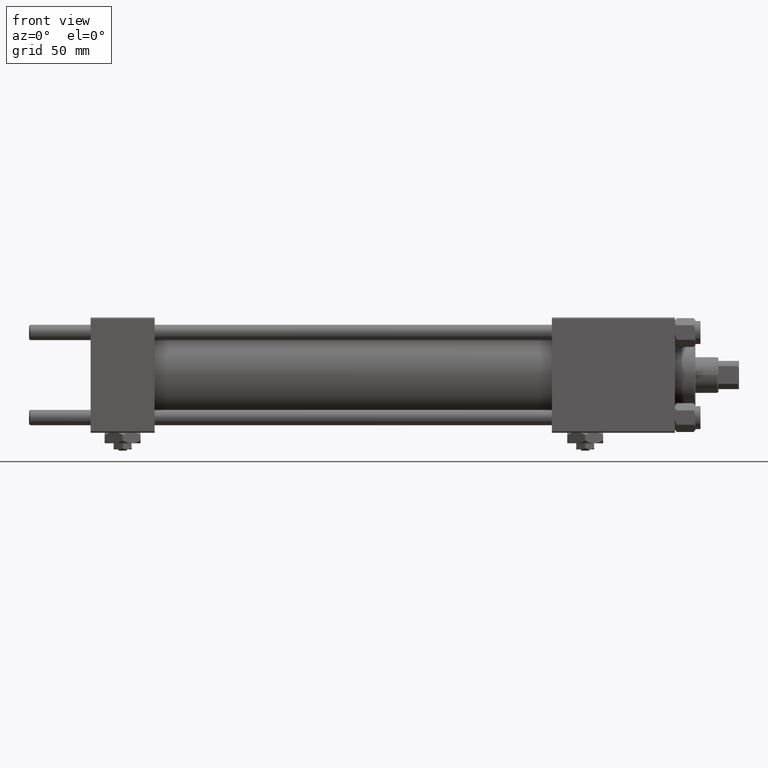
[diagram: clean part render]
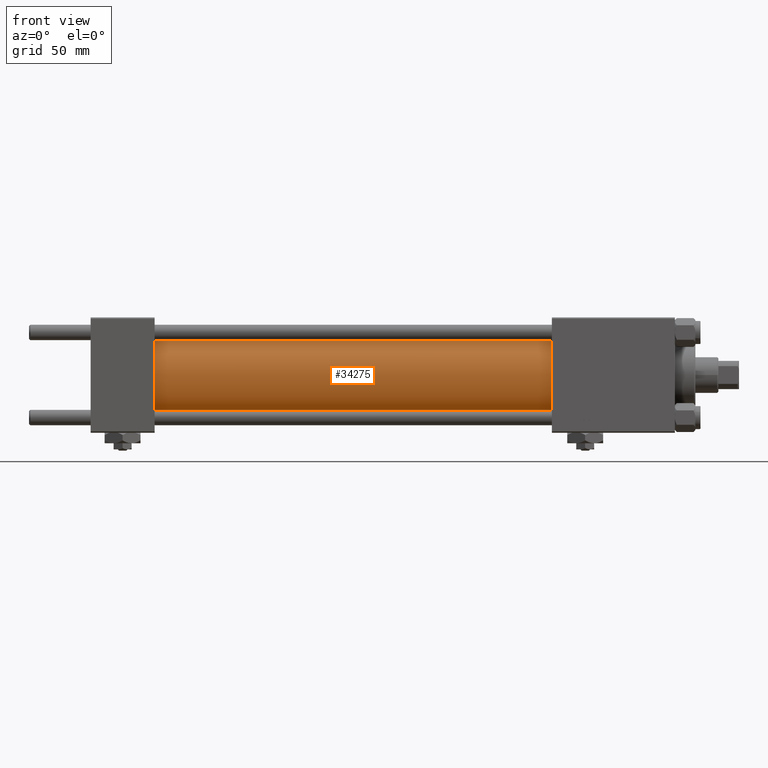
[diagram: same view with one face highlighted and labeled with its STEP entity id]
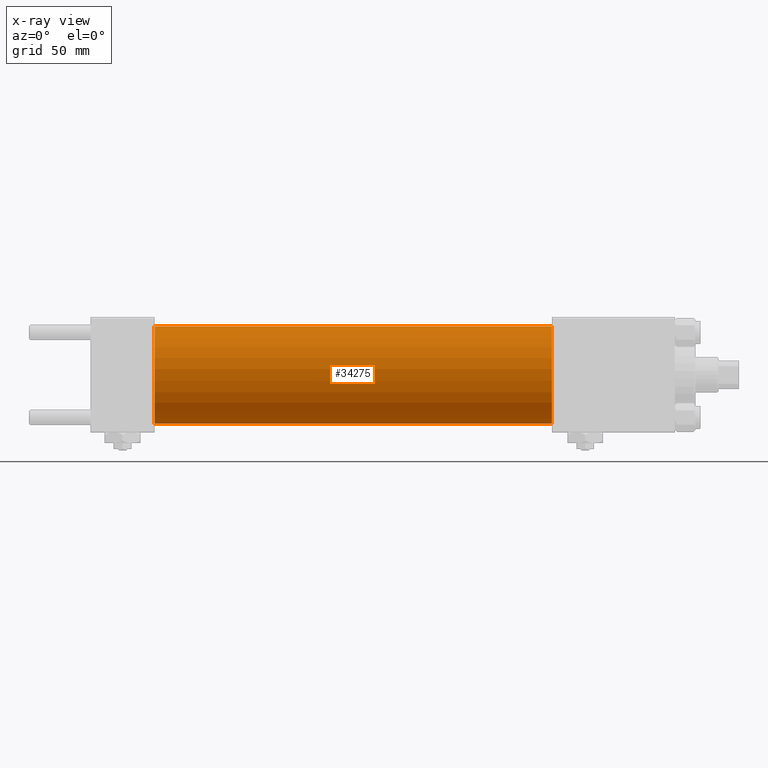
[diagram: x-ray of the same camera — body ghosted, the highlighted face saturated]
A machine part, front view. The second image highlights one B-rep face of the part: STEP entity #34275.
The next image is the same camera in x-ray: the body ghosted, the highlighted face saturated — about 0% of this face is hidden behind the body in this view.
In plain terms, the highlighted cylindrical surface (partial cylindrical patch) has radius 19 mm, axis along (-1, -0, -0).
Its self-contained STEP definition (entity closure, byte-faithful):
#846 = CARTESIAN_POINT ( 'NONE',  ( 180.0000000000000000, 2.326828918379970970E-15, -19.00000000000000000 ) ) ;
#4496 = LINE ( 'NONE', #45151, #48096 ) ;
#5926 = CARTESIAN_POINT ( 'NONE',  ( 180.0000000000000000, 0.000000000000000000, 19.00000000000000000 ) ) ;
#6207 = AXIS2_PLACEMENT_3D ( 'NONE', #47599, #23429, #43109 ) ;
#10308 = ORIENTED_EDGE ( 'NONE', *, *, #48839, .T. ) ;
#11249 = CIRCLE ( 'NONE', #6207, 19.00000000000000000 ) ;
#11780 = CARTESIAN_POINT ( 'NONE',  ( 24.99999999999999289, 0.000000000000000000, 0.000000000000000000 ) ) ;
#12281 = DIRECTION ( 'NONE',  ( -1.000000000000000000, -0.000000000000000000, -0.000000000000000000 ) ) ;
#12888 = DIRECTION ( 'NONE',  ( -1.000000000000000000, -0.000000000000000000, -0.000000000000000000 ) ) ;
#12981 = EDGE_CURVE ( 'NONE', #40314, #36988, #4496, .T. ) ;
#13512 = VERTEX_POINT ( 'NONE', #5926 ) ;
#13611 = CARTESIAN_POINT ( 'NONE',  ( 180.0000000000000000, 0.000000000000000000, 0.000000000000000000 ) ) ;
#13871 = DIRECTION ( 'NONE',  ( -1.000000000000000000, -0.000000000000000000, -0.000000000000000000 ) ) ;
#15199 = DIRECTION ( 'NONE',  ( 1.000000000000000000, -0.000000000000000000, 0.000000000000000000 ) ) ;
#18841 = VERTEX_POINT ( 'NONE', #33835 ) ;
#23429 = DIRECTION ( 'NONE',  ( 1.000000000000000000, 0.000000000000000000, 0.000000000000000000 ) ) ;
#24188 = EDGE_CURVE ( 'NONE', #18841, #36988, #32428, .T. ) ;
#24606 = ORIENTED_EDGE ( 'NONE', *, *, #24188, .T. ) ;
#25652 = ORIENTED_EDGE ( 'NONE', *, *, #37430, .F. ) ;
#26566 = VECTOR ( 'NONE', #12281, 1000.000000000000000 ) ;
#28034 = DIRECTION ( 'NONE',  ( 0.000000000000000000, 0.000000000000000000, 1.000000000000000000 ) ) ;
#32203 = LINE ( 'NONE', #36917, #26566 ) ;
#32428 = CIRCLE ( 'NONE', #39124, 19.00000000000000000 ) ;
#33835 = CARTESIAN_POINT ( 'NONE',  ( 24.99999999999999289, 0.000000000000000000, 19.00000000000000000 ) ) ;
#34275 = ADVANCED_FACE ( 'NONE', ( #36686 ), #36945, .T. ) ;
#34384 = EDGE_LOOP ( 'NONE', ( #37592, #25652, #10308, #24606 ) ) ;
#36686 = FACE_OUTER_BOUND ( 'NONE', #34384, .T. ) ;
#36917 = CARTESIAN_POINT ( 'NONE',  ( 180.0000000000000000, 0.000000000000000000, 19.00000000000000000 ) ) ;
#36945 = CYLINDRICAL_SURFACE ( 'NONE', #50522, 19.00000000000000000 ) ;
#36988 = VERTEX_POINT ( 'NONE', #42276 ) ;
#37430 = EDGE_CURVE ( 'NONE', #13512, #40314, #11249, .T. ) ;
#37592 = ORIENTED_EDGE ( 'NONE', *, *, #12981, .F. ) ;
#39124 = AXIS2_PLACEMENT_3D ( 'NONE', #11780, #15199, #28034 ) ;
#40314 = VERTEX_POINT ( 'NONE', #846 ) ;
#42276 = CARTESIAN_POINT ( 'NONE',  ( 24.99999999999999289, 2.326828918379970970E-15, -19.00000000000000000 ) ) ;
#43109 = DIRECTION ( 'NONE',  ( 0.000000000000000000, 0.000000000000000000, -1.000000000000000000 ) ) ;
#44821 = DIRECTION ( 'NONE',  ( 0.000000000000000000, 0.000000000000000000, 1.000000000000000000 ) ) ;
#45151 = CARTESIAN_POINT ( 'NONE',  ( 180.0000000000000000, 2.326828918379970970E-15, -19.00000000000000000 ) ) ;
#47599 = CARTESIAN_POINT ( 'NONE',  ( 180.0000000000000000, 0.000000000000000000, 0.000000000000000000 ) ) ;
#48096 = VECTOR ( 'NONE', #12888, 1000.000000000000000 ) ;
#48839 = EDGE_CURVE ( 'NONE', #13512, #18841, #32203, .T. ) ;
#50522 = AXIS2_PLACEMENT_3D ( 'NONE', #13611, #13871, #44821 ) ;